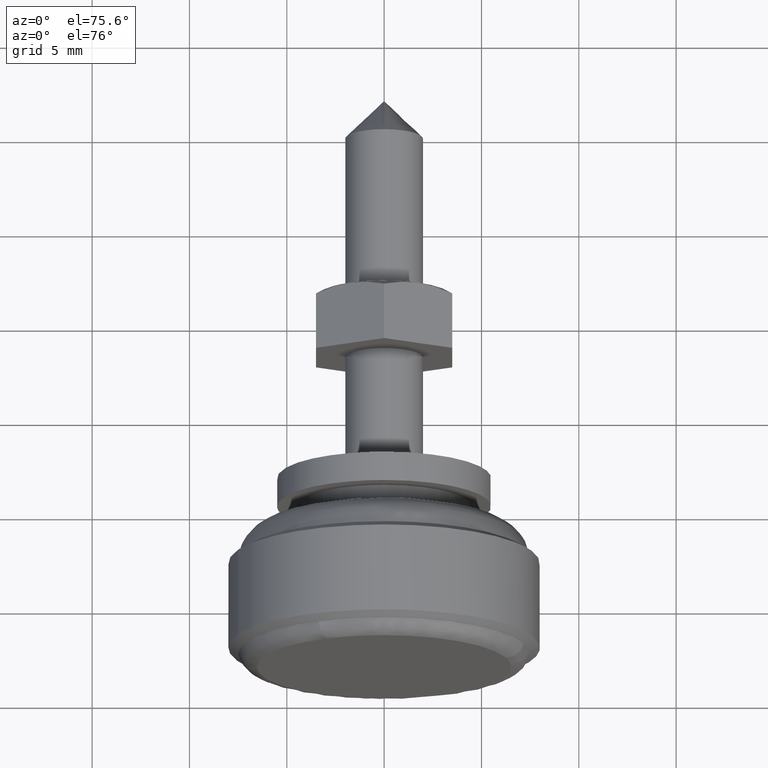
[diagram: clean part render]
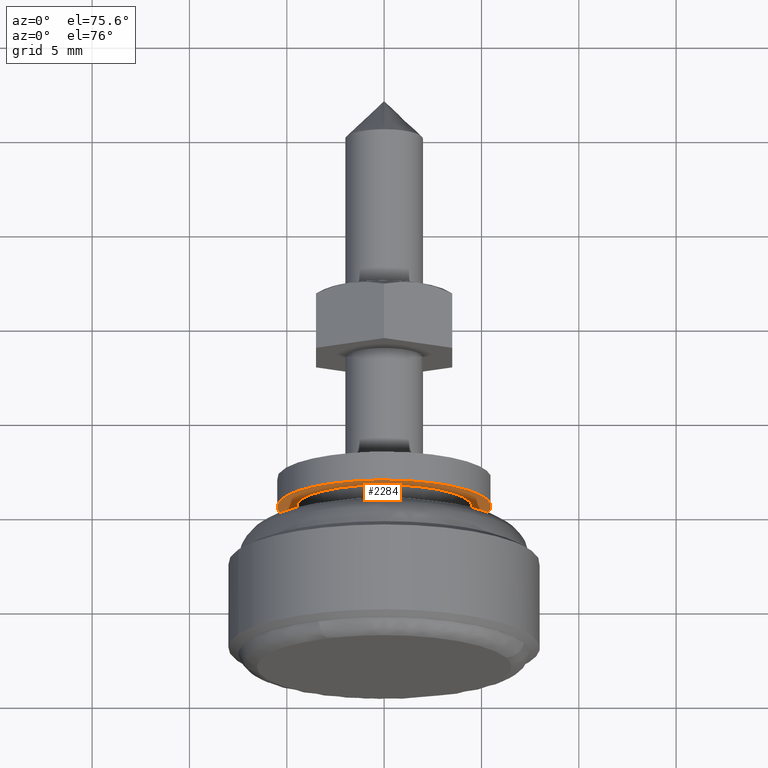
[diagram: same view with one face highlighted and labeled with its STEP entity id]
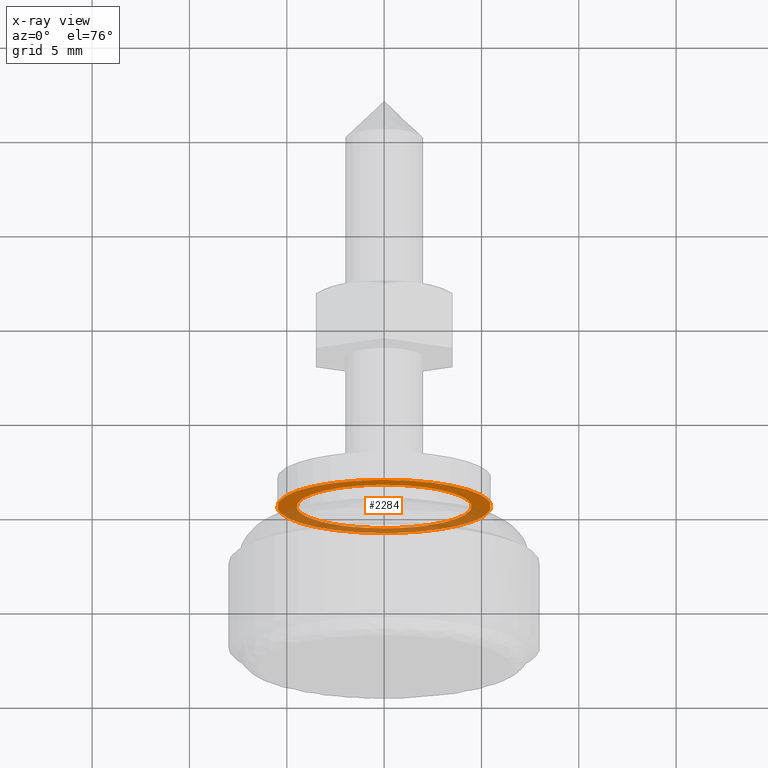
[diagram: x-ray of the same camera — body ghosted, the highlighted face saturated]
A machine part, auxiliary view. The second image highlights one B-rep face of the part: STEP entity #2284.
The next image is the same camera in x-ray: the body ghosted, the highlighted face saturated — about 46% of this face is hidden behind the body in this view.
In plain terms, the highlighted face is a freeform B-spline surface patch.
Its self-contained STEP definition (entity closure, byte-faithful):
#1545=CARTESIAN_POINT('',(-1.500000000000055,-4.491607046378420,0.274711013373207));
#1546=VERTEX_POINT('',#1545);
#1552=CARTESIAN_POINT('',(-1.500000000000055,0.0,4.500000000000000));
#1553=VERTEX_POINT('',#1552);
#1554=CARTESIAN_POINT('',(-1.500000000000055,0.0,4.500000000000000));
#1555=CARTESIAN_POINT('',(-1.500000000000055,-4.233184302069297,4.500000000000001));
#1556=CARTESIAN_POINT('',(-1.500000000000056,-4.491607046378421,0.274711013373207));
#1564=(BOUNDED_CURVE()B_SPLINE_CURVE(2,(#1554,#1555,#1556),.UNSPECIFIED.,.F.,.U.)B_SPLINE_CURVE_WITH_KNOTS((3,3),(0.500000000000000,0.739333247074182),.UNSPECIFIED.)CURVE()GEOMETRIC_REPRESENTATION_ITEM()RATIONAL_B_SPLINE_CURVE((1.0,0.719603659581470,0.976072652123617))REPRESENTATION_ITEM(''));
#1565=EDGE_CURVE('',#1553,#1546,#1564,.T.);
#1567=CARTESIAN_POINT('',(-1.500000000000055,4.468543363446968,-0.531149893134203));
#1568=VERTEX_POINT('',#1567);
#1569=CARTESIAN_POINT('',(-1.500000000000056,4.468543363446968,-0.531149893134203));
#1570=CARTESIAN_POINT('',(-1.500000000000056,4.500000000000000,-0.266506435018874));
#1571=CARTESIAN_POINT('',(-1.500000000000055,4.500000000000000,0.0));
#1572=CARTESIAN_POINT('',(-1.500000000000055,4.500000000000000,4.500000000000000));
#1573=CARTESIAN_POINT('',(-1.500000000000055,0.0,4.500000000000000));
#1581=(BOUNDED_CURVE()B_SPLINE_CURVE(2,(#1569,#1570,#1571,#1572,#1573),.UNSPECIFIED.,.F.,.U.)B_SPLINE_CURVE_WITH_KNOTS((3,2,3),(0.229562630956307,0.250000000000000,0.500000000000000),.UNSPECIFIED.)CURVE()GEOMETRIC_REPRESENTATION_ITEM()RATIONAL_B_SPLINE_CURVE((0.956027062778260,0.976056132786857,1.0,0.707106781186547,1.0))REPRESENTATION_ITEM(''));
#1582=EDGE_CURVE('',#1568,#1553,#1581,.T.);
#1626=CARTESIAN_POINT('',(-1.500000000000055,0.0,-4.500000000000000));
#1627=VERTEX_POINT('',#1626);
#1628=CARTESIAN_POINT('',(-1.500000000000055,0.0,-4.500000000000000));
#1629=CARTESIAN_POINT('',(-1.500000000000056,3.996789116333089,-4.500000000000001));
#1630=CARTESIAN_POINT('',(-1.500000000000056,4.468543363446968,-0.531149893134203));
#1638=(BOUNDED_CURVE()B_SPLINE_CURVE(2,(#1628,#1629,#1630),.UNSPECIFIED.,.F.,.U.)B_SPLINE_CURVE_WITH_KNOTS((3,3),(0.0,0.229562630956307),.UNSPECIFIED.)CURVE()GEOMETRIC_REPRESENTATION_ITEM()RATIONAL_B_SPLINE_CURVE((1.0,0.731050648399690,0.956027062778260))REPRESENTATION_ITEM(''));
#1639=EDGE_CURVE('',#1627,#1568,#1638,.T.);
#1641=CARTESIAN_POINT('',(-1.500000000000056,-4.491607046378421,0.274711013373207));
#1642=CARTESIAN_POINT('',(-1.500000000000055,-4.500000000000000,0.137483717182479));
#1643=CARTESIAN_POINT('',(-1.500000000000055,-4.500000000000000,0.0));
#1644=CARTESIAN_POINT('',(-1.500000000000055,-4.500000000000000,-4.500000000000000));
#1645=CARTESIAN_POINT('',(-1.500000000000055,0.0,-4.500000000000000));
#1653=(BOUNDED_CURVE()B_SPLINE_CURVE(2,(#1641,#1642,#1643,#1644,#1645),.UNSPECIFIED.,.F.,.U.)B_SPLINE_CURVE_WITH_KNOTS((3,2,3),(0.739333247074182,0.750000000000000,1.0),.UNSPECIFIED.)CURVE()GEOMETRIC_REPRESENTATION_ITEM()RATIONAL_B_SPLINE_CURVE((0.976072652123617,0.987503121605078,1.0,0.707106781186547,1.0))REPRESENTATION_ITEM(''));
#1654=EDGE_CURVE('',#1546,#1627,#1653,.T.);
#1701=CARTESIAN_POINT('',(-1.499999999999811,-5.461553008168680,0.649183132048765));
#1702=VERTEX_POINT('',#1701);
#1703=CARTESIAN_POINT('',(-1.499999999999946,0.0,-5.500000000000000));
#1704=VERTEX_POINT('',#1703);
#1705=CARTESIAN_POINT('',(-1.499999999999811,-5.461553008168681,0.649183132048765));
#1706=CARTESIAN_POINT('',(-1.499999999999946,-5.500000000000000,0.325730051536331));
#1707=CARTESIAN_POINT('',(-1.499999999999946,-5.500000000000000,0.0));
#1708=CARTESIAN_POINT('',(-1.499999999999946,-5.500000000000001,-5.500000000000001));
#1709=CARTESIAN_POINT('',(-1.499999999999946,0.0,-5.500000000000000));
#1717=(BOUNDED_CURVE()B_SPLINE_CURVE(2,(#1705,#1706,#1707,#1708,#1709),.UNSPECIFIED.,.F.,.U.)B_SPLINE_CURVE_WITH_KNOTS((3,2,3),(0.229562633143157,0.250000000000000,0.500000000000000),.UNSPECIFIED.)CURVE()GEOMETRIC_REPRESENTATION_ITEM()RATIONAL_B_SPLINE_CURVE((0.956027067064583,0.976056135348912,1.0,0.707106781186548,1.0))REPRESENTATION_ITEM(''));
#1718=EDGE_CURVE('',#1702,#1704,#1717,.T.);
#1720=CARTESIAN_POINT('',(-1.499999999999838,5.489741930941851,-0.335758144474106));
#1721=VERTEX_POINT('',#1720);
#1722=CARTESIAN_POINT('',(-1.499999999999946,0.0,-5.500000000000000));
#1723=CARTESIAN_POINT('',(-1.499999999999947,5.173891698854468,-5.500000000000001));
#1724=CARTESIAN_POINT('',(-1.499999999999838,5.489741930941851,-0.335758144474106));
#1732=(BOUNDED_CURVE()B_SPLINE_CURVE(2,(#1722,#1723,#1724),.UNSPECIFIED.,.F.,.U.)B_SPLINE_CURVE_WITH_KNOTS((3,3),(0.500000000000000,0.739333239554676),.UNSPECIFIED.)CURVE()GEOMETRIC_REPRESENTATION_ITEM()RATIONAL_B_SPLINE_CURVE((1.0,0.719603668391119,0.976072636007844))REPRESENTATION_ITEM(''));
#1733=EDGE_CURVE('',#1704,#1721,#1732,.T.);
#1800=CARTESIAN_POINT('',(-1.499999999999946,0.0,5.500000000000000));
#1801=VERTEX_POINT('',#1800);
#1802=CARTESIAN_POINT('',(-1.499999999999946,0.0,5.500000000000000));
#1803=CARTESIAN_POINT('',(-1.499999999999946,-4.884964539173122,5.500000000000000));
#1804=CARTESIAN_POINT('',(-1.499999999999811,-5.461553008168681,0.649183132048765));
#1812=(BOUNDED_CURVE()B_SPLINE_CURVE(2,(#1802,#1803,#1804),.UNSPECIFIED.,.F.,.U.)B_SPLINE_CURVE_WITH_KNOTS((3,3),(0.0,0.229562633143157),.UNSPECIFIED.)CURVE()GEOMETRIC_REPRESENTATION_ITEM()RATIONAL_B_SPLINE_CURVE((1.0,0.731050645837636,0.956027067064583))REPRESENTATION_ITEM(''));
#1813=EDGE_CURVE('',#1801,#1702,#1812,.T.);
#1847=CARTESIAN_POINT('',(-1.499999999999838,5.489741930941851,-0.335758144474106));
#1848=CARTESIAN_POINT('',(-1.499999999999946,5.500000000000000,-0.168035774289608));
#1849=CARTESIAN_POINT('',(-1.499999999999946,5.500000000000000,0.0));
#1850=CARTESIAN_POINT('',(-1.499999999999946,5.500000000000001,5.500000000000001));
#1851=CARTESIAN_POINT('',(-1.499999999999946,0.0,5.500000000000000));
#1859=(BOUNDED_CURVE()B_SPLINE_CURVE(2,(#1847,#1848,#1849,#1850,#1851),.UNSPECIFIED.,.F.,.U.)B_SPLINE_CURVE_WITH_KNOTS((3,2,3),(0.739333239554676,0.750000000000000,1.0),.UNSPECIFIED.)CURVE()GEOMETRIC_REPRESENTATION_ITEM()RATIONAL_B_SPLINE_CURVE((0.976072636007844,0.987503112795429,1.0,0.707106781186548,1.0))REPRESENTATION_ITEM(''));
#1860=EDGE_CURVE('',#1721,#1801,#1859,.T.);
#2267=CARTESIAN_POINT('',(-1.500000000000000,-6.049350254945297,6.049449978679866));
#2268=CARTESIAN_POINT('',(-1.500000000000000,6.049316128305931,6.049449978679866));
#2269=CARTESIAN_POINT('',(-1.500000000000000,-6.049350254945297,-6.049450273722857));
#2270=CARTESIAN_POINT('',(-1.500000000000000,6.049316128305931,-6.049450273722857));
#2271=B_SPLINE_SURFACE_WITH_KNOTS('',1,1,((#2267,#2269),(#2268,#2270)),.UNSPECIFIED.,.F.,.F.,.U.,(2,2),(2,2),(0.0,12.098666383251230),(0.0,12.098900252402720),.UNSPECIFIED.);
#2272=ORIENTED_EDGE('',*,*,#1860,.F.);
#2273=ORIENTED_EDGE('',*,*,#1733,.F.);
#2274=ORIENTED_EDGE('',*,*,#1718,.F.);
#2275=ORIENTED_EDGE('',*,*,#1813,.F.);
#2276=EDGE_LOOP('',(#2272,#2273,#2274,#2275));
#2277=FACE_OUTER_BOUND('',#2276,.T.);
#2278=ORIENTED_EDGE('',*,*,#1565,.T.);
#2279=ORIENTED_EDGE('',*,*,#1654,.T.);
#2280=ORIENTED_EDGE('',*,*,#1639,.T.);
#2281=ORIENTED_EDGE('',*,*,#1582,.T.);
#2282=EDGE_LOOP('',(#2278,#2279,#2280,#2281));
#2283=FACE_BOUND('',#2282,.T.);
#2284=ADVANCED_FACE('',(#2277,#2283),#2271,.T.);